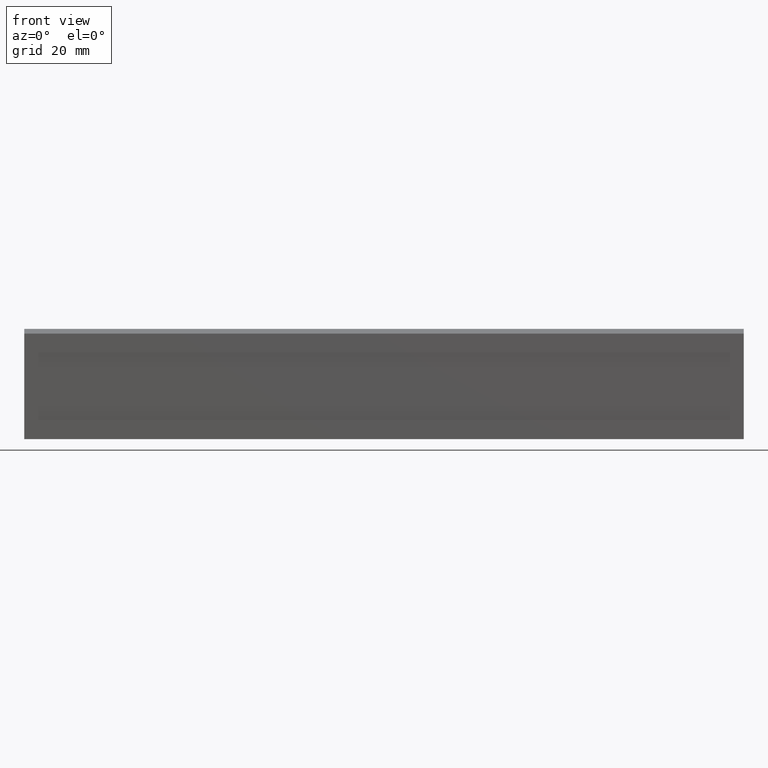
[diagram: clean part render]
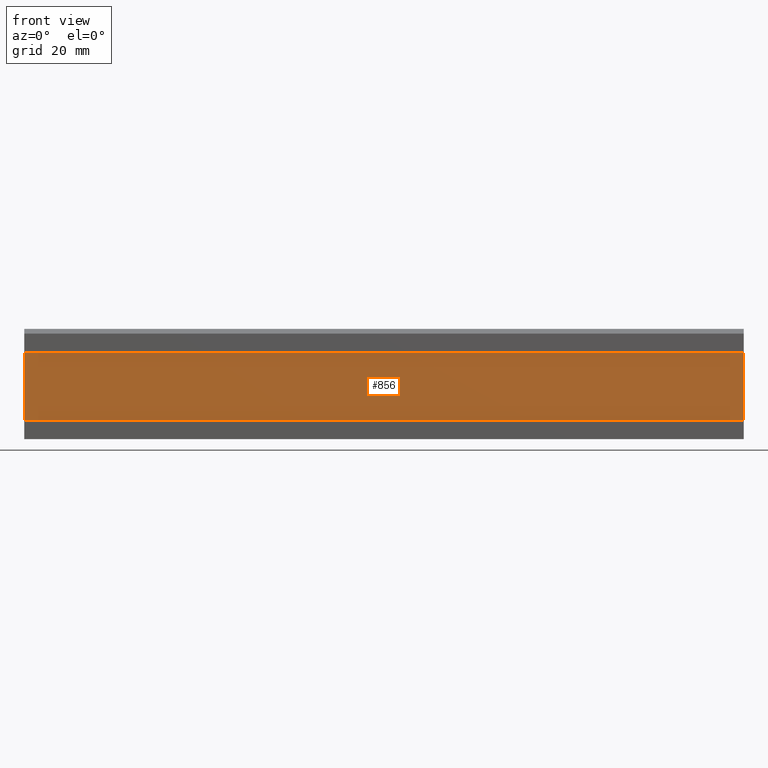
[diagram: same view with one face highlighted and labeled with its STEP entity id]
A machine part, front view. The second image highlights one B-rep face of the part: STEP entity #856.
In plain terms, the highlighted face is a freeform B-spline surface patch.
Its self-contained STEP definition (entity closure, byte-faithful):
#526=CARTESIAN_POINT('',(0.0,-14.500000000000000,-19.0));
#527=VERTEX_POINT('',#526);
#533=CARTESIAN_POINT('',(0.0,-14.500000000000000,-5.0));
#534=VERTEX_POINT('',#533);
#535=CARTESIAN_POINT('',(0.0,-14.500000000000000,-5.0));
#536=CARTESIAN_POINT('',(0.0,-14.500000000000000,-19.0));
#537=QUASI_UNIFORM_CURVE('',1,(#535,#536),.UNSPECIFIED.,.F.,.U.);
#538=EDGE_CURVE('',#534,#527,#537,.T.);
#562=CARTESIAN_POINT('',(150.0,-14.500000000000000,-5.0));
#563=VERTEX_POINT('',#562);
#569=CARTESIAN_POINT('',(150.0,-14.500000000000000,-19.0));
#570=VERTEX_POINT('',#569);
#571=CARTESIAN_POINT('',(150.0,-14.500000000000000,-5.0));
#572=CARTESIAN_POINT('',(150.0,-14.500000000000000,-19.0));
#573=QUASI_UNIFORM_CURVE('',1,(#571,#572),.UNSPECIFIED.,.F.,.U.);
#574=EDGE_CURVE('',#563,#570,#573,.T.);
#833=CARTESIAN_POINT('',(150.0,-14.500000000000000,-19.0));
#834=CARTESIAN_POINT('',(0.0,-14.500000000000000,-19.0));
#835=QUASI_UNIFORM_CURVE('',1,(#833,#834),.UNSPECIFIED.,.F.,.U.);
#836=EDGE_CURVE('',#570,#527,#835,.T.);
#841=CARTESIAN_POINT('',(-7.492499709270897,-14.500000000000000,-19.699299972865280));
#842=CARTESIAN_POINT('',(-7.492499709270897,-14.500000000000000,-4.300699651625454));
#843=CARTESIAN_POINT('',(157.492503732584400,-14.500000000000000,-19.699299972865280));
#844=CARTESIAN_POINT('',(157.492503732584400,-14.500000000000000,-4.300699651625454));
#845=B_SPLINE_SURFACE_WITH_KNOTS('',1,1,((#841,#843),(#842,#844)),.UNSPECIFIED.,.F.,.F.,.U.,(2,2),(2,2),(0.0,15.398600321239829),(0.0,164.985003441855300),.UNSPECIFIED.);
#846=ORIENTED_EDGE('',*,*,#538,.T.);
#847=ORIENTED_EDGE('',*,*,#836,.F.);
#848=ORIENTED_EDGE('',*,*,#574,.F.);
#849=CARTESIAN_POINT('',(150.0,-14.500000000000000,-5.0));
#850=CARTESIAN_POINT('',(0.0,-14.500000000000000,-5.0));
#851=QUASI_UNIFORM_CURVE('',1,(#849,#850),.UNSPECIFIED.,.F.,.U.);
#852=EDGE_CURVE('',#563,#534,#851,.T.);
#853=ORIENTED_EDGE('',*,*,#852,.T.);
#854=EDGE_LOOP('',(#846,#847,#848,#853));
#855=FACE_OUTER_BOUND('',#854,.T.);
#856=ADVANCED_FACE('',(#855),#845,.F.);